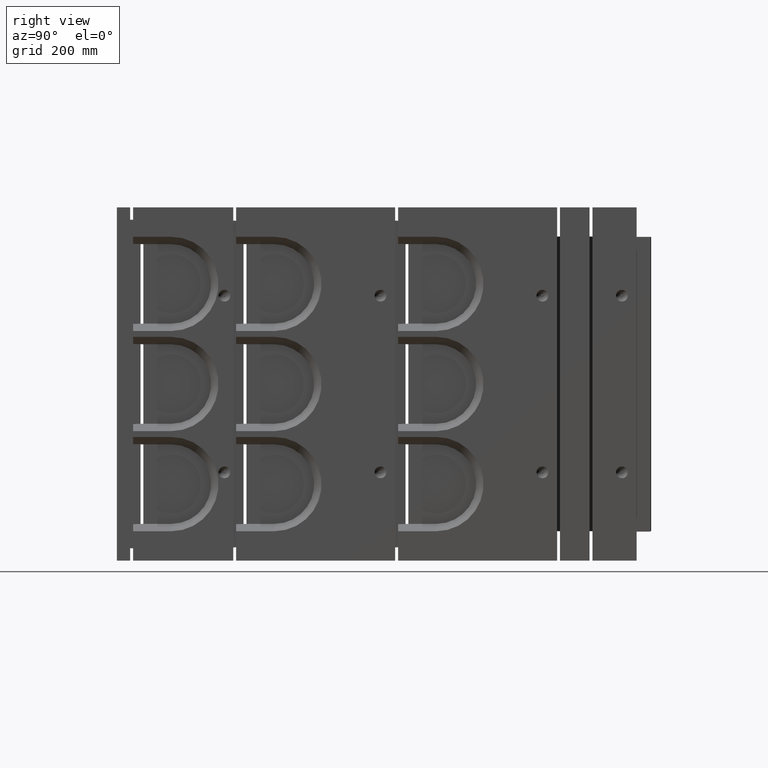
[diagram: clean part render]
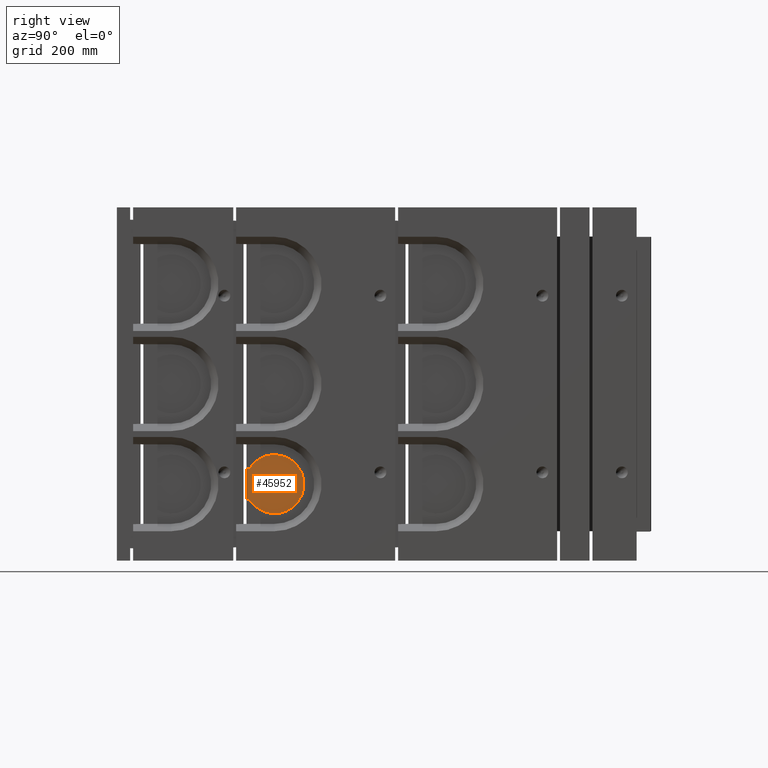
[diagram: same view with one face highlighted and labeled with its STEP entity id]
A machine part, right view. The second image highlights one B-rep face of the part: STEP entity #45952.
In plain terms, the highlighted planar face has unit normal (1, 0, 0).
Its self-contained STEP definition (entity closure, byte-faithful):
#1504 = DIRECTION ( 'NONE',  ( 8.013947210383127555E-16, -1.000000000000000000, 5.126376437251042968E-32 ) ) ;
#4517 = VERTEX_POINT ( 'NONE', #10389 ) ;
#4651 = ORIENTED_EDGE ( 'NONE', *, *, #28220, .T. ) ;
#4855 = DIRECTION ( 'NONE',  ( 4.617429402512937596E-16, -1.665334536937734811E-16, -1.000000000000000000 ) ) ;
#5876 = DIRECTION ( 'NONE',  ( 0.0000000000000000000, 0.0000000000000000000, -1.000000000000000000 ) ) ;
#5998 = CARTESIAN_POINT ( 'NONE',  ( 550.0000000000000000, 439.9999999999997158, -288.9999999999996021 ) ) ;
#6975 = ORIENTED_EDGE ( 'NONE', *, *, #31721, .F. ) ;
#9095 = CARTESIAN_POINT ( 'NONE',  ( 550.0000000000000000, 448.9825599078881737, -288.9999999999996021 ) ) ;
#10389 = CARTESIAN_POINT ( 'NONE',  ( 550.0000000000002274, 439.9999999999997158, -390.9999999999996021 ) ) ;
#11873 = ORIENTED_EDGE ( 'NONE', *, *, #33832, .T. ) ;
#12078 = VERTEX_POINT ( 'NONE', #5998 ) ;
#14043 = VERTEX_POINT ( 'NONE', #18737 ) ;
#15091 = DIRECTION ( 'NONE',  ( 1.000000000000000000, 1.907720574944769541E-16, 4.617429402512937596E-16 ) ) ;
#15402 = PLANE ( 'NONE',  #32509 ) ;
#17449 = EDGE_LOOP ( 'NONE', ( #4651, #22676, #11873, #6975 ) ) ;
#18234 = VERTEX_POINT ( 'NONE', #30776 ) ;
#18737 = CARTESIAN_POINT ( 'NONE',  ( 550.0000000000000000, 448.9825599078881737, -288.9999999999996021 ) ) ;
#18991 = CARTESIAN_POINT ( 'NONE',  ( 550.0000000000000000, 534.9999999999996589, -339.9999999999996589 ) ) ;
#20023 = CARTESIAN_POINT ( 'NONE',  ( 550.0000000000000000, 534.9999999999996589, -339.9999999999996589 ) ) ;
#21986 = VECTOR ( 'NONE', #28861, 1000.000000000000000 ) ;
#22676 = ORIENTED_EDGE ( 'NONE', *, *, #38214, .T. ) ;
#27591 = CIRCLE ( 'NONE', #34571, 99.99999999999997158 ) ;
#28220 = EDGE_CURVE ( 'NONE', #4517, #18234, #41207, .T. ) ;
#28754 = VECTOR ( 'NONE', #1504, 1000.000000000000000 ) ;
#28861 = DIRECTION ( 'NONE',  ( -4.617429402512937596E-16, 1.665334536937734811E-16, 1.000000000000000000 ) ) ;
#30776 = CARTESIAN_POINT ( 'NONE',  ( 550.0000000000002274, 448.9825599078881737, -390.9999999999996021 ) ) ;
#31417 = LINE ( 'NONE', #35720, #21986 ) ;
#31721 = EDGE_CURVE ( 'NONE', #4517, #12078, #31417, .T. ) ;
#31959 = CARTESIAN_POINT ( 'NONE',  ( 550.0000000000002274, 448.9825599078881737, -390.9999999999996021 ) ) ;
#32509 = AXIS2_PLACEMENT_3D ( 'NONE', #18991, #15091, #4855 ) ;
#33832 = EDGE_CURVE ( 'NONE', #14043, #12078, #38177, .T. ) ;
#34571 = AXIS2_PLACEMENT_3D ( 'NONE', #20023, #44795, #5876 ) ;
#35720 = CARTESIAN_POINT ( 'NONE',  ( 550.0000000000002274, 439.9999999999996589, -561.4999999999996589 ) ) ;
#38177 = LINE ( 'NONE', #9095, #28754 ) ;
#38214 = EDGE_CURVE ( 'NONE', #18234, #14043, #27591, .T. ) ;
#41207 = LINE ( 'NONE', #31959, #45617 ) ;
#44795 = DIRECTION ( 'NONE',  ( 1.000000000000000000, 1.907720574944769541E-16, 4.617429402512937596E-16 ) ) ;
#45617 = VECTOR ( 'NONE', #45847, 1000.000000000000000 ) ;
#45847 = DIRECTION ( 'NONE',  ( -8.013947210383126569E-16, 1.000000000000000000, -1.850371707708594563E-16 ) ) ;
#45879 = FACE_OUTER_BOUND ( 'NONE', #17449, .T. ) ;
#45952 = ADVANCED_FACE ( 'NONE', ( #45879 ), #15402, .T. ) ;